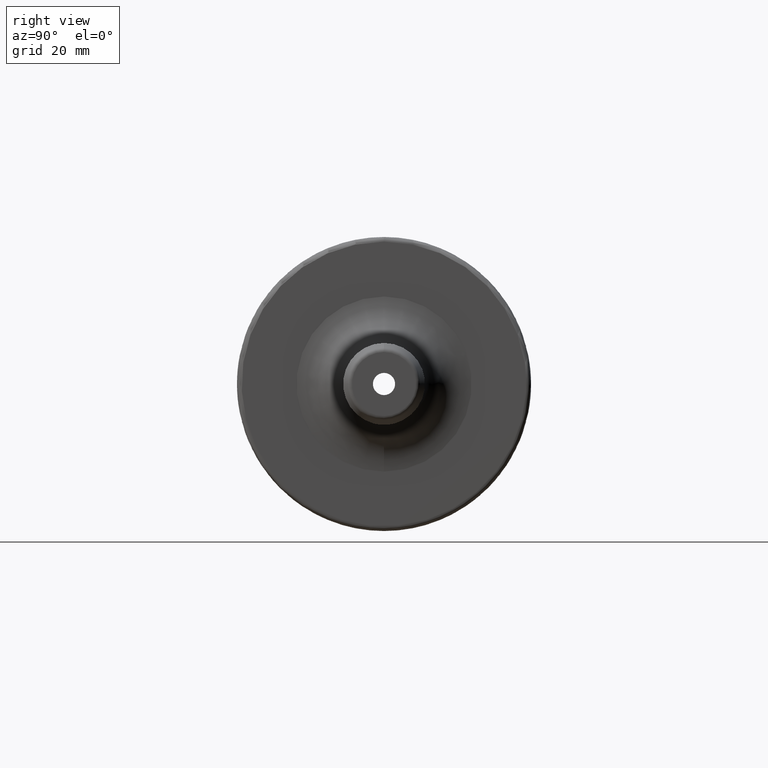
[diagram: clean part render]
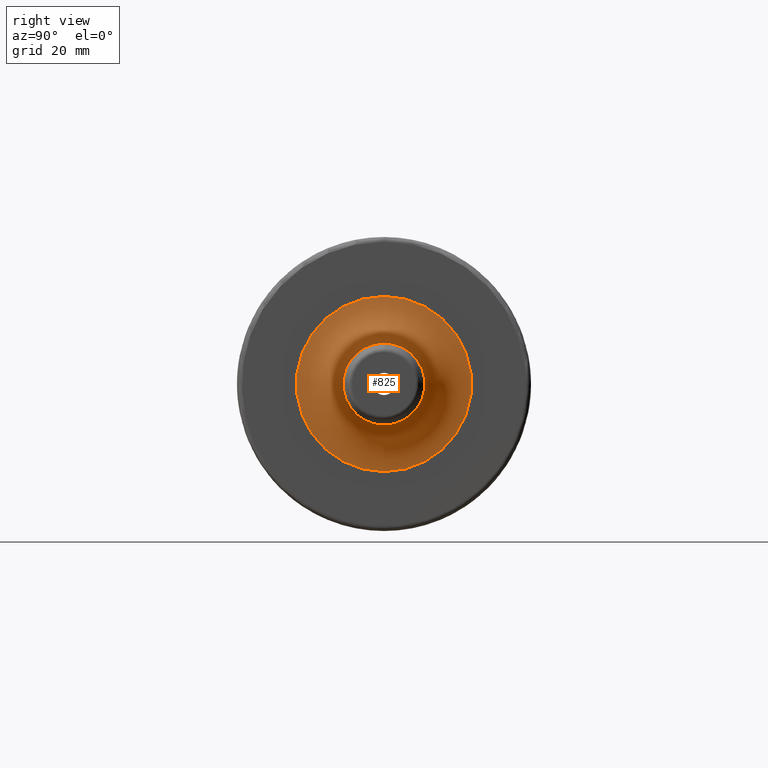
[diagram: same view with one face highlighted and labeled with its STEP entity id]
A machine part, right view. The second image highlights one B-rep face of the part: STEP entity #825.
In plain terms, the highlighted toroidal blend (fillet) surface has major radius 18.763 mm and minor (blend) radius 10 mm.
Its self-contained STEP definition (entity closure, byte-faithful):
#46=TOROIDAL_SURFACE('',#905,18.763,10.);
#61=CIRCLE('',#896,8.763);
#62=CIRCLE('',#897,8.763);
#67=CIRCLE('',#906,10.);
#68=CIRCLE('',#907,18.763);
#138=FACE_OUTER_BOUND('',#191,.T.);
#191=EDGE_LOOP('',(#589,#590,#591,#592,#593));
#361=VERTEX_POINT('',#1484);
#362=VERTEX_POINT('',#1486);
#366=VERTEX_POINT('',#1501);
#445=EDGE_CURVE('',#362,#361,#61,.T.);
#446=EDGE_CURVE('',#361,#362,#62,.T.);
#452=EDGE_CURVE('',#362,#366,#67,.T.);
#453=EDGE_CURVE('',#366,#366,#68,.T.);
#589=ORIENTED_EDGE('',*,*,#445,.T.);
#590=ORIENTED_EDGE('',*,*,#446,.T.);
#591=ORIENTED_EDGE('',*,*,#452,.T.);
#592=ORIENTED_EDGE('',*,*,#453,.T.);
#593=ORIENTED_EDGE('',*,*,#452,.F.);
#825=ADVANCED_FACE('',(#138),#46,.F.);
#896=AXIS2_PLACEMENT_3D('',#1487,#1010,#1011);
#897=AXIS2_PLACEMENT_3D('',#1488,#1012,#1013);
#905=AXIS2_PLACEMENT_3D('',#1500,#1029,#1030);
#906=AXIS2_PLACEMENT_3D('',#1502,#1031,#1032);
#907=AXIS2_PLACEMENT_3D('',#1503,#1033,#1034);
#1010=DIRECTION('center_axis',(-1.,0.,0.));
#1011=DIRECTION('ref_axis',(0.,-1.22464679914735E-16,1.));
#1012=DIRECTION('center_axis',(-1.,0.,0.));
#1013=DIRECTION('ref_axis',(0.,-1.22464679914735E-16,1.));
#1029=DIRECTION('center_axis',(-1.,0.,0.));
#1030=DIRECTION('ref_axis',(0.,0.,1.));
#1031=DIRECTION('center_axis',(0.,-1.,1.22464679914735E-16));
#1032=DIRECTION('ref_axis',(0.,-1.22464679914735E-16,-1.));
#1033=DIRECTION('center_axis',(1.,0.,0.));
#1034=DIRECTION('ref_axis',(0.,-1.22464679914735E-16,1.));
#1484=CARTESIAN_POINT('',(37.,-1.07315799009283E-15,8.763));
#1486=CARTESIAN_POINT('',(37.,0.,-8.763));
#1487=CARTESIAN_POINT('Origin',(37.,0.,0.));
#1488=CARTESIAN_POINT('Origin',(37.,0.,0.));
#1500=CARTESIAN_POINT('Origin',(37.,0.,0.));
#1501=CARTESIAN_POINT('',(27.,4.59560957848036E-15,-18.763));
#1502=CARTESIAN_POINT('Origin',(37.,-2.29780478924018E-15,-18.763));
#1503=CARTESIAN_POINT('Origin',(27.,0.,0.));